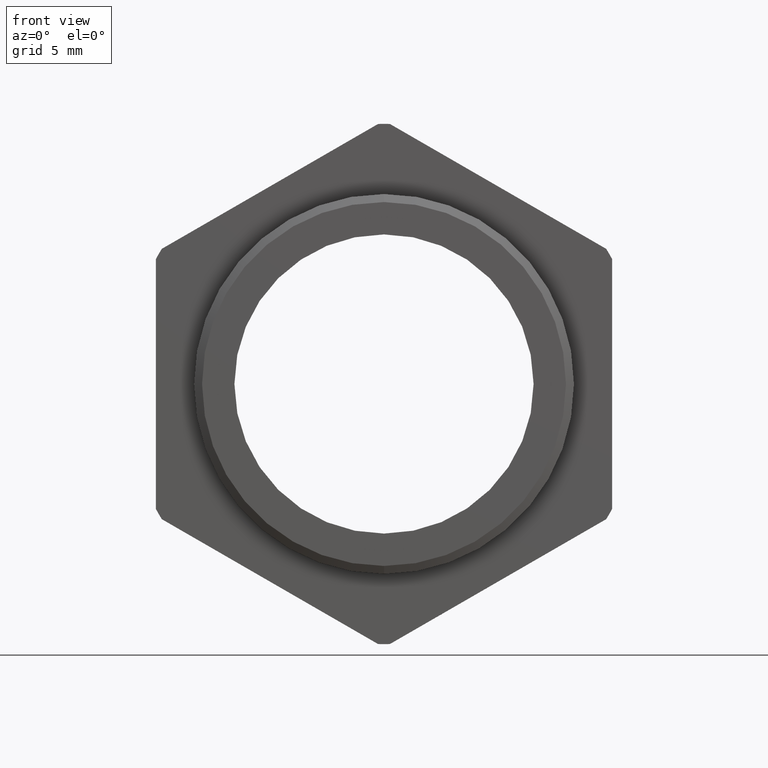
[diagram: clean part render]
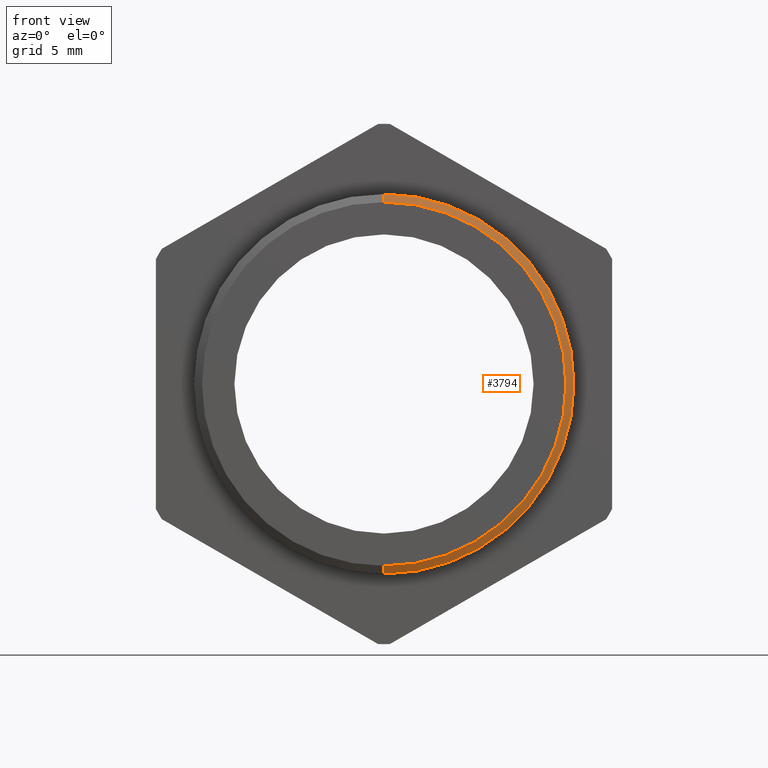
[diagram: same view with one face highlighted and labeled with its STEP entity id]
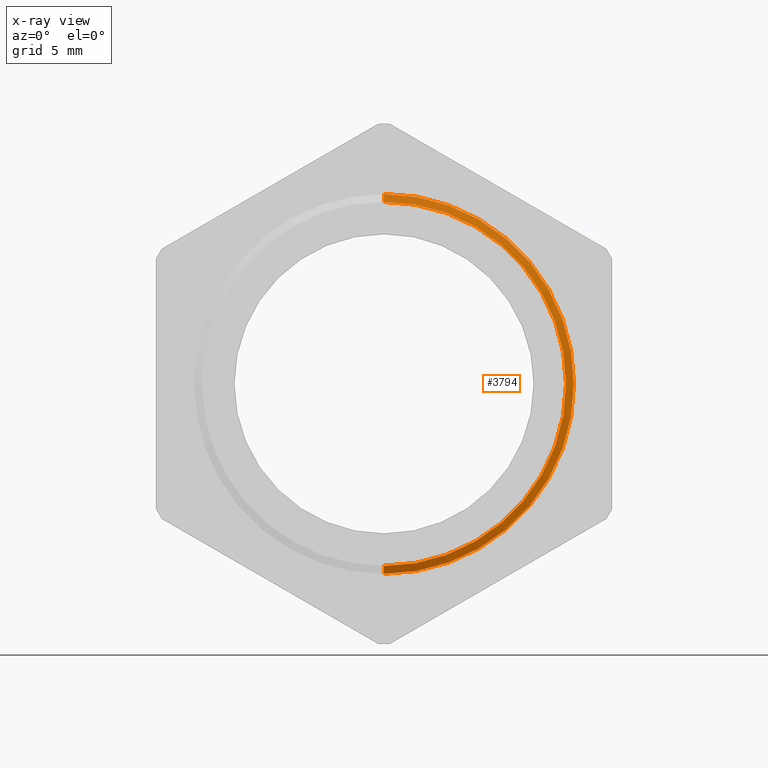
[diagram: x-ray of the same camera — body ghosted, the highlighted face saturated]
A machine part, front view. The second image highlights one B-rep face of the part: STEP entity #3794.
The next image is the same camera in x-ray: the body ghosted, the highlighted face saturated — about 0% of this face is hidden behind the body in this view.
In plain terms, the highlighted conical surface has half-angle 60 deg.
Its self-contained STEP definition (entity closure, byte-faithful):
#1639 = DIRECTION ( 'NONE',  ( 0.0000000000000000000, 0.0000000000000000000, 1.000000000000000000 ) ) ;
#1640 = DIRECTION ( 'NONE',  ( -0.0000000000000000000, 1.000000000000000000, -0.0000000000000000000 ) ) ;
#1641 = CARTESIAN_POINT ( 'NONE',  ( 0.0000000000000000000, 0.005254890582948011000, 0.0000000000000000000 ) ) ;
#1642 = AXIS2_PLACEMENT_3D ( 'NONE', #1641, #1640, #1639 ) ;
#1643 = CIRCLE ( 'NONE', #1642, 0.3287738815610546400 ) ;
#1646 = CARTESIAN_POINT ( 'NONE',  ( 0.0000000000000000000, 0.005254890582948011000, -0.3287738815610546400 ) ) ;
#1647 = DIRECTION ( 'NONE',  ( 1.060575238724906300E-016, 0.5000000000000008900, -0.8660254037844380400 ) ) ;
#1648 = VECTOR ( 'NONE', #1647, 39.37007874015748100 ) ;
#1649 = CARTESIAN_POINT ( 'NONE',  ( 4.026318816969965600E-017, 0.005254890582948011000, -0.3287738815610546400 ) ) ;
#1650 = DIRECTION ( 'NONE',  ( 0.0000000000000000000, 0.0000000000000000000, 1.000000000000000000 ) ) ;
#1651 = DIRECTION ( 'NONE',  ( -0.0000000000000000000, 1.000000000000000000, -0.0000000000000000000 ) ) ;
#1652 = CARTESIAN_POINT ( 'NONE',  ( 0.0000000000000000000, -0.002697463644112934600, 0.0000000000000000000 ) ) ;
#1653 = AXIS2_PLACEMENT_3D ( 'NONE', #1652, #1651, #1650 ) ;
#1654 = CIRCLE ( 'NONE', #1653, 0.3150000000000000000 ) ;
#1655 = LINE ( 'NONE', #1649, #1648 ) ;
#1656 = DIRECTION ( 'NONE',  ( 0.0000000000000000000, 0.0000000000000000000, 1.000000000000000000 ) ) ;
#1657 = DIRECTION ( 'NONE',  ( -0.0000000000000000000, 1.000000000000000000, -0.0000000000000000000 ) ) ;
#1658 = CARTESIAN_POINT ( 'NONE',  ( 0.0000000000000000000, 0.005254890582948011000, 0.0000000000000000000 ) ) ;
#1659 = AXIS2_PLACEMENT_3D ( 'NONE', #1658, #1657, #1656 ) ;
#1660 = CARTESIAN_POINT ( 'NONE',  ( 0.0000000000000000000, -0.002697463644112934600, 0.3150000000000000000 ) ) ;
#1662 = CONICAL_SURFACE ( 'NONE', #1659, 0.3287738815610546400, 1.047197551196596700 ) ;
#1663 = FACE_OUTER_BOUND ( 'NONE', #3806, .T. ) ;
#1700 = CARTESIAN_POINT ( 'NONE',  ( 3.857637417314162700E-017, -0.002697463644112934600, -0.3150000000000000000 ) ) ;
#1701 = DIRECTION ( 'NONE',  ( 0.0000000000000000000, 0.5000000000000008900, 0.8660254037844380400 ) ) ;
#1702 = VECTOR ( 'NONE', #1701, 39.37007874015748100 ) ;
#1703 = CARTESIAN_POINT ( 'NONE',  ( 0.0000000000000000000, 0.005254890582948011000, 0.3287738815610546400 ) ) ;
#1704 = LINE ( 'NONE', #1703, #1702 ) ;
#1705 = CARTESIAN_POINT ( 'NONE',  ( 4.026318816969966200E-017, 0.005254890582948011000, 0.3287738815610546400 ) ) ;
#3794 = ADVANCED_FACE ( 'NONE', ( #1663 ), #1662, .T. ) ;
#3795 = ORIENTED_EDGE ( 'NONE', *, *, #3797, .T. ) ;
#3796 = VERTEX_POINT ( 'NONE', #1660 ) ;
#3797 = EDGE_CURVE ( 'NONE', #3796, #3807, #1654, .T. ) ;
#3798 = ORIENTED_EDGE ( 'NONE', *, *, #3799, .T. ) ;
#3799 = EDGE_CURVE ( 'NONE', #3807, #3800, #1655, .T. ) ;
#3800 = VERTEX_POINT ( 'NONE', #1646 ) ;
#3801 = ORIENTED_EDGE ( 'NONE', *, *, #3802, .F. ) ;
#3802 = EDGE_CURVE ( 'NONE', #3803, #3800, #1643, .T. ) ;
#3803 = VERTEX_POINT ( 'NONE', #1705 ) ;
#3804 = ORIENTED_EDGE ( 'NONE', *, *, #3805, .F. ) ;
#3805 = EDGE_CURVE ( 'NONE', #3796, #3803, #1704, .T. ) ;
#3806 = EDGE_LOOP ( 'NONE', ( #3795, #3798, #3801, #3804 ) ) ;
#3807 = VERTEX_POINT ( 'NONE', #1700 ) ;